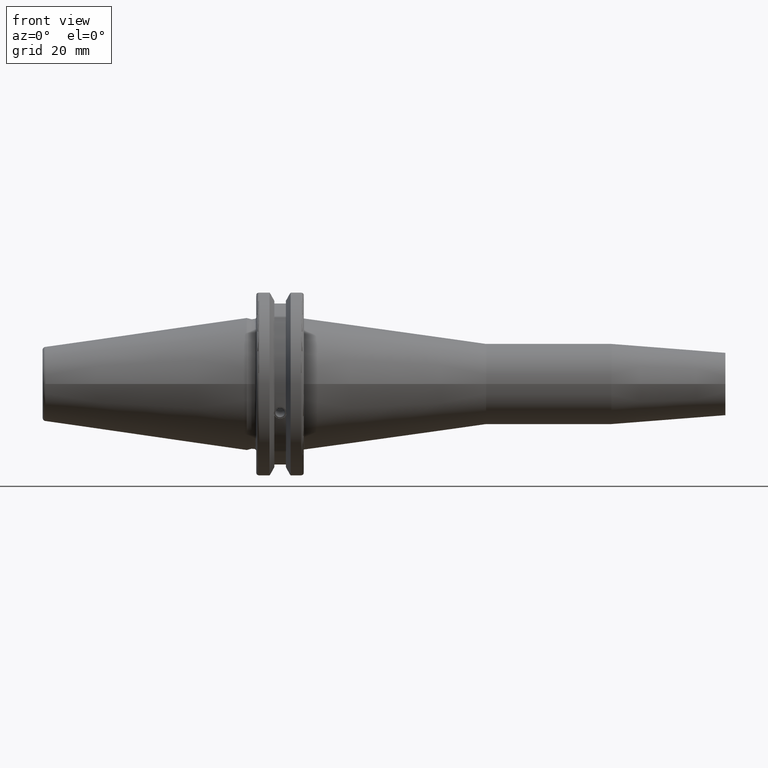
[diagram: clean part render]
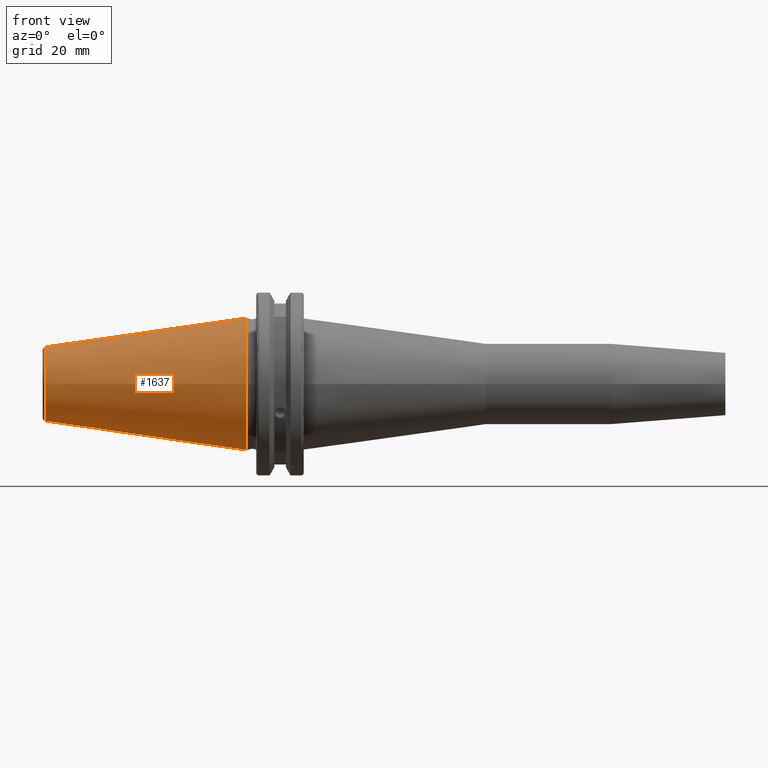
[diagram: same view with one face highlighted and labeled with its STEP entity id]
A machine part, front view. The second image highlights one B-rep face of the part: STEP entity #1637.
In plain terms, the highlighted conical surface has half-angle 8.297 deg.
Its self-contained STEP definition (entity closure, byte-faithful):
#150=CONICAL_SURFACE('',#1837,17.2484375,0.144812498238939);
#221=FACE_OUTER_BOUND('',#331,.T.);
#331=EDGE_LOOP('',(#1401,#1402,#1403,#1404,#1405));
#418=CIRCLE('',#1831,12.3966635780937);
#419=CIRCLE('',#1832,12.3966635780937);
#423=CIRCLE('',#1838,22.225);
#518=LINE('',#3089,#621);
#621=VECTOR('',#2263,17.2484375);
#786=VERTEX_POINT('',#3076);
#787=VERTEX_POINT('',#3077);
#790=VERTEX_POINT('',#3087);
#1006=EDGE_CURVE('',#786,#787,#418,.T.);
#1007=EDGE_CURVE('',#787,#786,#419,.T.);
#1011=EDGE_CURVE('',#790,#790,#423,.T.);
#1012=EDGE_CURVE('',#790,#787,#518,.T.);
#1401=ORIENTED_EDGE('',*,*,#1011,.F.);
#1402=ORIENTED_EDGE('',*,*,#1012,.T.);
#1403=ORIENTED_EDGE('',*,*,#1006,.F.);
#1404=ORIENTED_EDGE('',*,*,#1007,.F.);
#1405=ORIENTED_EDGE('',*,*,#1012,.F.);
#1637=ADVANCED_FACE('',(#221),#150,.T.);
#1831=AXIS2_PLACEMENT_3D('',#3078,#2247,#2248);
#1832=AXIS2_PLACEMENT_3D('',#3079,#2249,#2250);
#1837=AXIS2_PLACEMENT_3D('',#3086,#2259,#2260);
#1838=AXIS2_PLACEMENT_3D('',#3088,#2261,#2262);
#2247=DIRECTION('center_axis',(-1.,0.,0.));
#2248=DIRECTION('ref_axis',(0.,-1.,3.06161699786838E-17));
#2249=DIRECTION('center_axis',(-1.,0.,0.));
#2250=DIRECTION('ref_axis',(0.,-1.,3.06161699786838E-17));
#2259=DIRECTION('center_axis',(1.,0.,0.));
#2260=DIRECTION('ref_axis',(0.,1.,0.));
#2261=DIRECTION('center_axis',(1.,0.,0.));
#2262=DIRECTION('ref_axis',(0.,0.,-1.));
#2263=DIRECTION('',(-0.989532981063282,0.144306893071729,1.76724974695192E-17));
#3076=CARTESIAN_POINT('',(-67.3943068930717,-1.5181534371019E-15,12.3966635780937));
#3077=CARTESIAN_POINT('',(-67.3943068930718,-12.3966635780937,-1.5181534371019E-15));
#3078=CARTESIAN_POINT('Origin',(-67.3943068930717,0.,-1.89769179637738E-15));
#3079=CARTESIAN_POINT('Origin',(-67.3943068930717,0.,-1.89769179637738E-15));
#3086=CARTESIAN_POINT('Origin',(-34.125,0.,0.));
#3087=CARTESIAN_POINT('',(0.,-22.225,-2.72177751110499E-15));
#3088=CARTESIAN_POINT('Origin',(0.,0.,0.));
#3089=CARTESIAN_POINT('',(-34.125,-17.2484375,-2.11232437746682E-15));